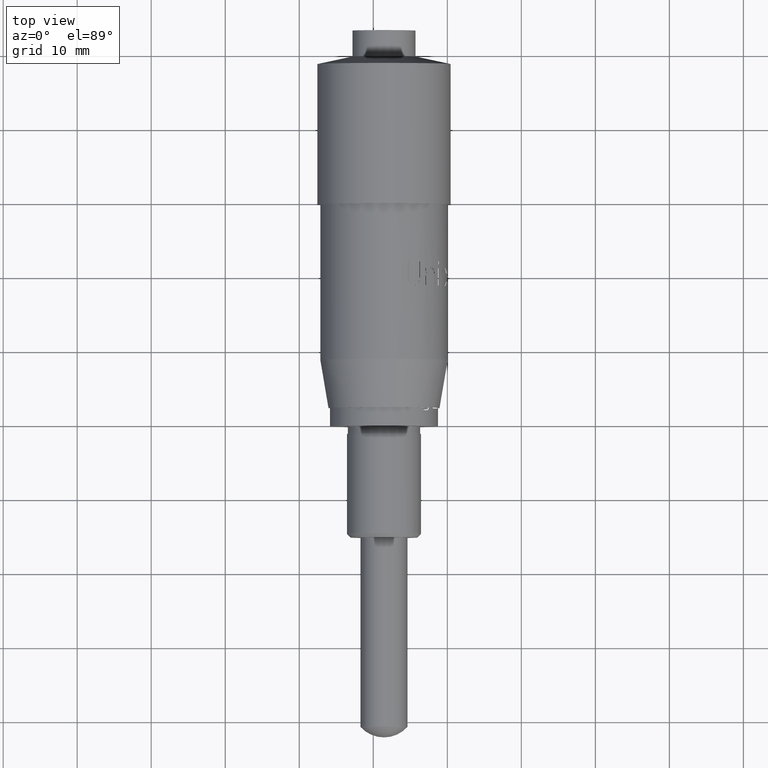
[diagram: clean part render]
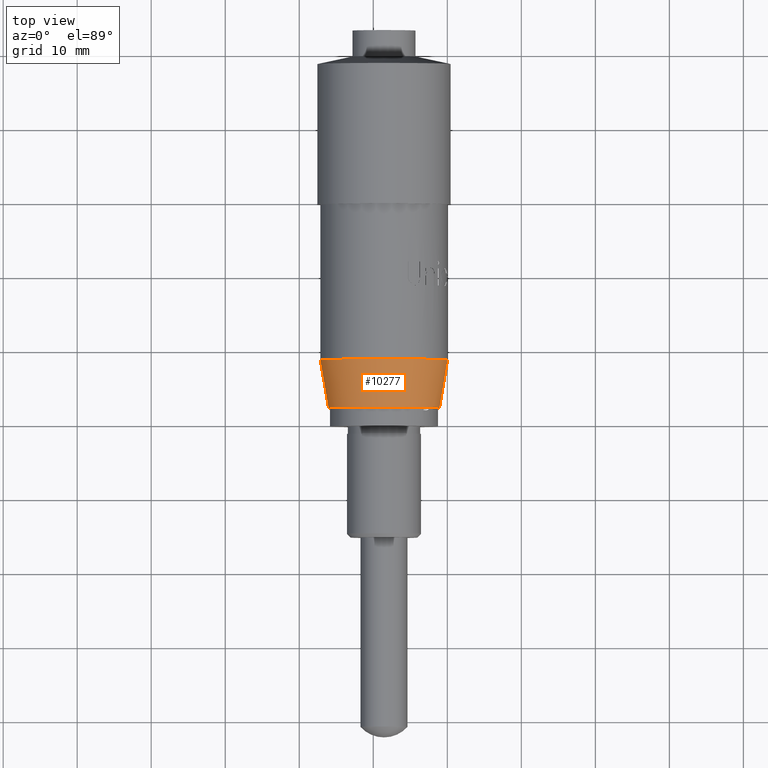
[diagram: same view with one face highlighted and labeled with its STEP entity id]
A machine part, top view. The second image highlights one B-rep face of the part: STEP entity #10277.
In plain terms, the highlighted conical surface has half-angle 9.605 deg.
Its self-contained STEP definition (entity closure, byte-faithful):
#408 = CARTESIAN_POINT ( 'NONE',  ( 22.84783534030352200, 28.82957255388083300, 23.47757420670093300 ) ) ;
#521 = EDGE_CURVE ( 'NONE', #5791, #3806, #9560, .T. ) ;
#931 = DIRECTION ( 'NONE',  ( -0.1668583036929083600, 0.9859808854580930400, 0.0000000000000000000 ) ) ;
#1129 = CARTESIAN_POINT ( 'NONE',  ( 40.04783534030352900, 28.82957255388083300, 23.47757420670093300 ) ) ;
#1300 = DIRECTION ( 'NONE',  ( -1.000000000000000000, 0.0000000000000000000, 0.0000000000000000000 ) ) ;
#1373 = CARTESIAN_POINT ( 'NONE',  ( 38.94783534030352000, 22.32957255388083700, 23.47757420670093300 ) ) ;
#1582 = DIRECTION ( 'NONE',  ( -8.879541407035451100E-017, 1.000000000000000000, -0.0000000000000000000 ) ) ;
#1875 = VECTOR ( 'NONE', #1952, 1000.000000000000100 ) ;
#1889 = AXIS2_PLACEMENT_3D ( 'NONE', #5441, #1989, #1300 ) ;
#1952 = DIRECTION ( 'NONE',  ( 0.1668583036929081900, 0.9859808854580931500, 2.043424875286770900E-017 ) ) ;
#1964 = CONICAL_SURFACE ( 'NONE', #1889, 8.599999999999999600, 0.1676424378312159600 ) ;
#1989 = DIRECTION ( 'NONE',  ( -8.879541407035451100E-017, 1.000000000000000000, -0.0000000000000000000 ) ) ;
#2600 = CARTESIAN_POINT ( 'NONE',  ( 22.84783534030352200, 28.82957255388083300, 23.47757420670093300 ) ) ;
#3289 = FACE_OUTER_BOUND ( 'NONE', #10817, .T. ) ;
#3612 = ORIENTED_EDGE ( 'NONE', *, *, #8508, .F. ) ;
#3696 = EDGE_CURVE ( 'NONE', #3806, #10309, #4388, .T. ) ;
#3806 = VERTEX_POINT ( 'NONE', #1373 ) ;
#4388 = LINE ( 'NONE', #1129, #1875 ) ;
#4486 = AXIS2_PLACEMENT_3D ( 'NONE', #4591, #10410, #5415 ) ;
#4591 = CARTESIAN_POINT ( 'NONE',  ( 31.44783534030352400, 28.82957255388083300, 23.47757420670093300 ) ) ;
#4648 = VECTOR ( 'NONE', #931, 1000.000000000000000 ) ;
#5241 = EDGE_CURVE ( 'NONE', #5623, #10309, #7755, .T. ) ;
#5295 = ORIENTED_EDGE ( 'NONE', *, *, #521, .T. ) ;
#5415 = DIRECTION ( 'NONE',  ( -1.000000000000000000, 0.0000000000000000000, 0.0000000000000000000 ) ) ;
#5441 = CARTESIAN_POINT ( 'NONE',  ( 31.44783534030352400, 28.82957255388083300, 23.47757420670093300 ) ) ;
#5623 = VERTEX_POINT ( 'NONE', #408 ) ;
#5791 = VERTEX_POINT ( 'NONE', #9875 ) ;
#6583 = DIRECTION ( 'NONE',  ( -1.000000000000000000, 0.0000000000000000000, 0.0000000000000000000 ) ) ;
#6851 = LINE ( 'NONE', #2600, #4648 ) ;
#7597 = AXIS2_PLACEMENT_3D ( 'NONE', #8285, #1582, #6583 ) ;
#7755 = CIRCLE ( 'NONE', #4486, 8.599999999999999600 ) ;
#8285 = CARTESIAN_POINT ( 'NONE',  ( 31.44783534030352400, 22.32957255388083700, 23.47757420670093300 ) ) ;
#8508 = EDGE_CURVE ( 'NONE', #5791, #5623, #6851, .T. ) ;
#8786 = CARTESIAN_POINT ( 'NONE',  ( 40.04783534030352900, 28.82957255388083300, 23.47757420670093300 ) ) ;
#8846 = ORIENTED_EDGE ( 'NONE', *, *, #3696, .T. ) ;
#9560 = CIRCLE ( 'NONE', #7597, 7.500000000000000000 ) ;
#9875 = CARTESIAN_POINT ( 'NONE',  ( 23.94783534030352400, 22.32957255388083700, 23.47757420670093300 ) ) ;
#9921 = ORIENTED_EDGE ( 'NONE', *, *, #5241, .F. ) ;
#10277 = ADVANCED_FACE ( 'NONE', ( #3289 ), #1964, .T. ) ;
#10309 = VERTEX_POINT ( 'NONE', #8786 ) ;
#10410 = DIRECTION ( 'NONE',  ( -8.879541407035451100E-017, 1.000000000000000000, -0.0000000000000000000 ) ) ;
#10817 = EDGE_LOOP ( 'NONE', ( #5295, #8846, #9921, #3612 ) ) ;